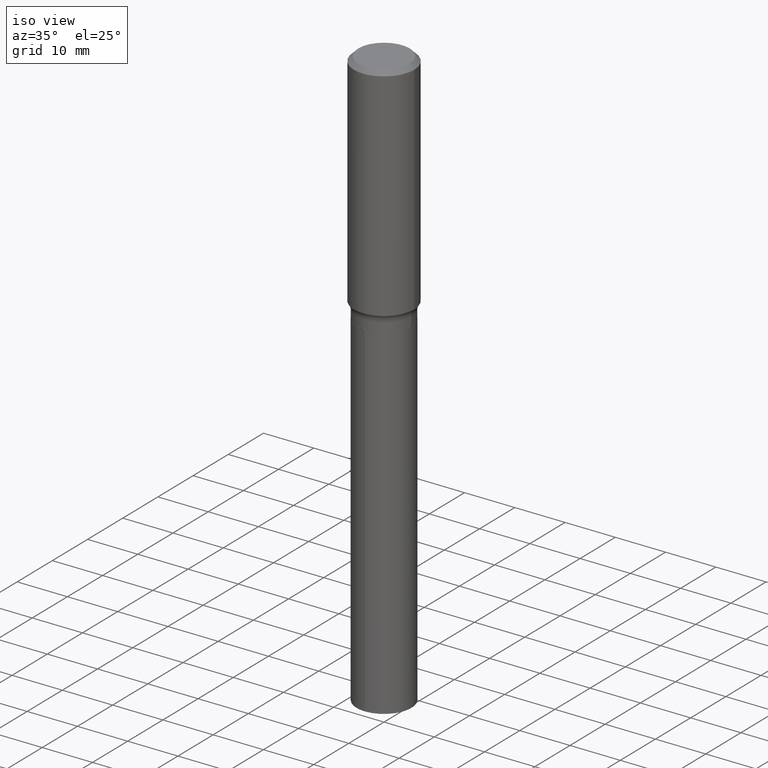
[diagram: clean part render]
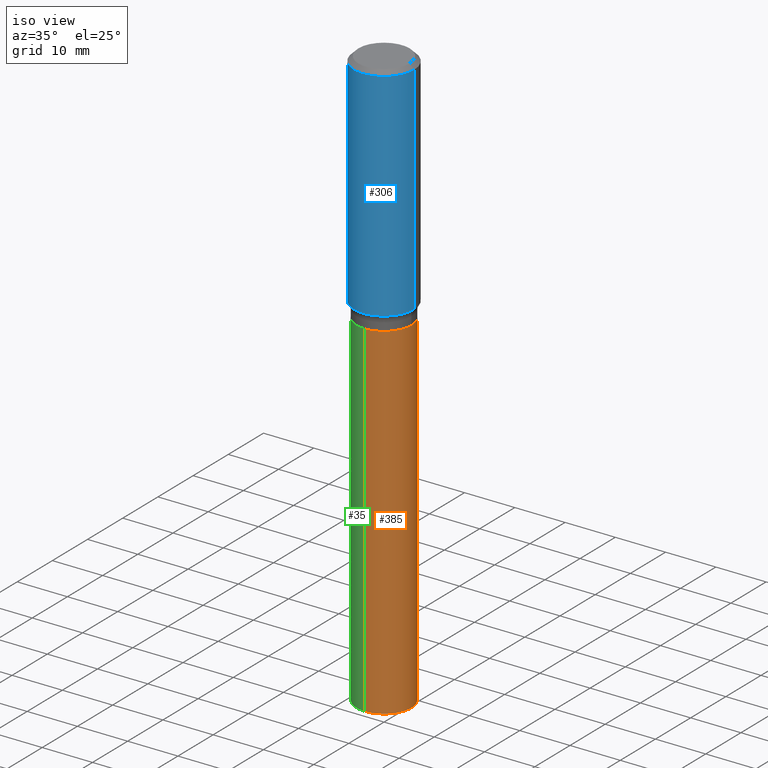
[diagram: same view with three faces highlighted in distinct colors, each labeled with its STEP entity id]
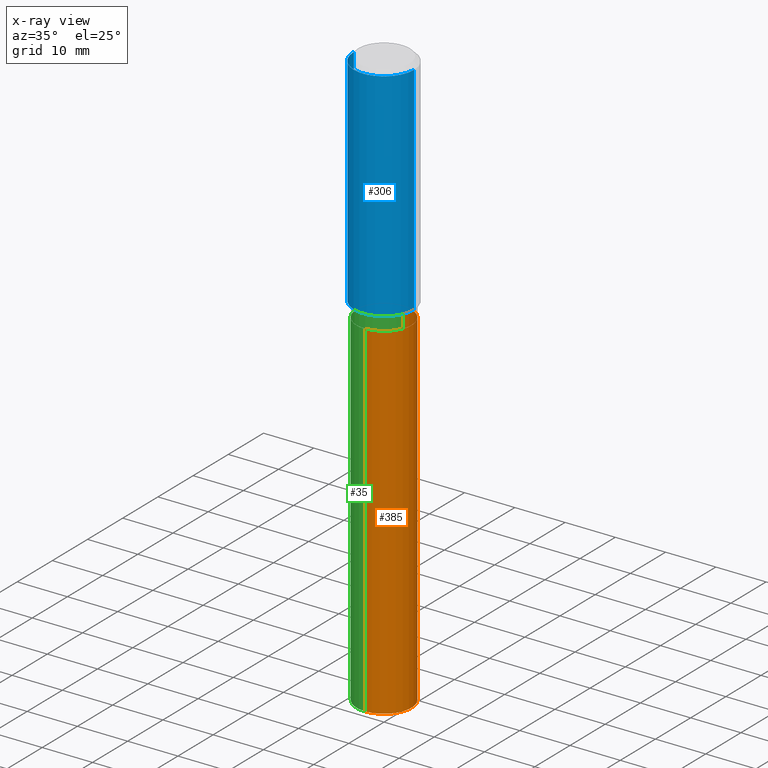
[diagram: x-ray of the same camera — body ghosted, the three highlighted faces saturated]
A machine part, iso view with three faces highlighted in distinct colors.
The next image is the same camera in x-ray (body ghosted, the three faces saturated) — at least one of them is partly hidden behind the body in this view.
Their STEP definitions:

[orange] entity #385 — the highlighted cylindrical surface (edge-blend (fillet) strip) has radius 5.4496 mm, axis along (-0, 0, 1).
#3 = CARTESIAN_POINT ( 'NONE',  ( -1.498194642497543040E-15, -0.2145500000000064578, -1.850699999999999124 ) ) ;
#19 = LINE ( 'NONE', #330, #22 ) ;
#22 = VECTOR ( 'NONE', #141, 39.37007874015748143 ) ;
#41 = VERTEX_POINT ( 'NONE', #237 ) ;
#48 = LINE ( 'NONE', #3, #261 ) ;
#59 = EDGE_CURVE ( 'NONE', #196, #281, #390, .T. ) ;
#68 = DIRECTION ( 'NONE',  ( -2.445463332132347352E-29, 3.491489177998303329E-15, 1.000000000000000000 ) ) ;
#74 = DIRECTION ( 'NONE',  ( -2.445463332132347352E-29, 3.491489177998303329E-15, 1.000000000000000000 ) ) ;
#91 = CARTESIAN_POINT ( 'NONE',  ( 4.525829119606832626E-29, -6.461684513797009689E-15, -1.850700000000000012 ) ) ;
#141 = DIRECTION ( 'NONE',  ( -2.445463332132347072E-29, 3.491489177998303329E-15, 1.000000000000000000 ) ) ;
#147 = DIRECTION ( 'NONE',  ( -6.982962677686266711E-15, -1.000000000000000000, 3.819876010716751118E-15 ) ) ;
#151 = CYLINDRICAL_SURFACE ( 'NONE', #217, 0.2145499999999999907 ) ;
#166 = ORIENTED_EDGE ( 'NONE', *, *, #183, .T. ) ;
#183 = EDGE_CURVE ( 'NONE', #335, #281, #19, .T. ) ;
#196 = VERTEX_POINT ( 'NONE', #248 ) ;
#217 = AXIS2_PLACEMENT_3D ( 'NONE', #373, #68, #147 ) ;
#237 = CARTESIAN_POINT ( 'NONE',  ( -1.498194642497476776E-15, -0.2145500000000159502, -4.559316173247068171 ) ) ;
#239 = DIRECTION ( 'NONE',  ( -2.445463332132347352E-29, 3.491489177998303329E-15, 1.000000000000000000 ) ) ;
#248 = CARTESIAN_POINT ( 'NONE',  ( -1.498194642497543040E-15, -0.2145500000000064578, -1.850699999999999124 ) ) ;
#261 = VECTOR ( 'NONE', #386, 39.37007874015748143 ) ;
#271 = ORIENTED_EDGE ( 'NONE', *, *, #59, .F. ) ;
#281 = VERTEX_POINT ( 'NONE', #479 ) ;
#330 = CARTESIAN_POINT ( 'NONE',  ( 1.524469439573340045E-15, 0.2145499999999935514, -1.850700000000000900 ) ) ;
#335 = VERTEX_POINT ( 'NONE', #445 ) ;
#338 = EDGE_LOOP ( 'NONE', ( #476, #166, #271, #423 ) ) ;
#361 = EDGE_CURVE ( 'NONE', #41, #335, #466, .T. ) ;
#365 = DIRECTION ( 'NONE',  ( -6.982962677686266711E-15, -1.000000000000000000, 3.819876010716751118E-15 ) ) ;
#373 = CARTESIAN_POINT ( 'NONE',  ( 4.525829119606832626E-29, -6.461684513797009689E-15, -1.850700000000000012 ) ) ;
#375 = DIRECTION ( 'NONE',  ( -6.982962677686266711E-15, -1.000000000000000000, 2.546584007144500745E-15 ) ) ;
#381 = AXIS2_PLACEMENT_3D ( 'NONE', #481, #74, #375 ) ;
#385 = ADVANCED_FACE ( 'NONE', ( #478 ), #151, .T. ) ;
#386 = DIRECTION ( 'NONE',  ( -2.445463332132347072E-29, 3.491489177998303329E-15, 1.000000000000000000 ) ) ;
#390 = CIRCLE ( 'NONE', #441, 0.2145499999999999907 ) ;
#423 = ORIENTED_EDGE ( 'NONE', *, *, #428, .F. ) ;
#428 = EDGE_CURVE ( 'NONE', #41, #196, #48, .T. ) ;
#441 = AXIS2_PLACEMENT_3D ( 'NONE', #91, #239, #365 ) ;
#445 = CARTESIAN_POINT ( 'NONE',  ( 1.524469439573406507E-15, 0.2145499999999841145, -4.559316173247069059 ) ) ;
#466 = CIRCLE ( 'NONE', #381, 0.2145499999999999907 ) ;
#476 = ORIENTED_EDGE ( 'NONE', *, *, #361, .T. ) ;
#478 = FACE_OUTER_BOUND ( 'NONE', #338, .T. ) ;
#479 = CARTESIAN_POINT ( 'NONE',  ( 1.524469439573406901E-15, 0.2145499999999935514, -1.850700000000000900 ) ) ;
#481 = CARTESIAN_POINT ( 'NONE',  ( 1.114965065210317674E-28, -1.591878857004032847E-14, -4.559316173247069059 ) ) ;

[blue] entity #306 — the highlighted cylindrical surface (partial cylindrical patch) has radius 5.9995 mm, axis along (-0, 0, 1).
#14 = ORIENTED_EDGE ( 'NONE', *, *, #347, .F. ) ;
#25 = DIRECTION ( 'NONE',  ( 1.000000000000000000, -6.982962677686266711E-15, 0.000000000000000000 ) ) ;
#31 = VECTOR ( 'NONE', #272, 39.37007874015748143 ) ;
#61 = AXIS2_PLACEMENT_3D ( 'NONE', #412, #370, #25 ) ;
#75 = CARTESIAN_POINT ( 'NONE',  ( -0.2361999999999999933, -1.407814648925067803E-15, -0.03543000000000021826 ) ) ;
#104 = DIRECTION ( 'NONE',  ( 1.000000000000000000, -6.982962677686266711E-15, 0.000000000000000000 ) ) ;
#114 = DIRECTION ( 'NONE',  ( 1.000000000000000000, -6.982962677686266711E-15, 4.876176775795935793E-29 ) ) ;
#145 = AXIS2_PLACEMENT_3D ( 'NONE', #331, #299, #114 ) ;
#149 = CARTESIAN_POINT ( 'NONE',  ( -0.2362000000000001043, 1.678301941865357380E-15, -1.161852468318209317E-29 ) ) ;
#152 = CIRCLE ( 'NONE', #61, 0.2361999999999999933 ) ;
#155 = LINE ( 'NONE', #149, #227 ) ;
#169 = VERTEX_POINT ( 'NONE', #289 ) ;
#171 = CARTESIAN_POINT ( 'NONE',  ( -0.2362000000000002153, -4.370228055880279997E-15, -1.732367843543948460 ) ) ;
#189 = CARTESIAN_POINT ( 'NONE',  ( 0.2362000000000002153, -7.697905782215135283E-15, -1.732367843543948460 ) ) ;
#200 = VERTEX_POINT ( 'NONE', #171 ) ;
#227 = VECTOR ( 'NONE', #300, 39.37007874015748143 ) ;
#234 = ORIENTED_EDGE ( 'NONE', *, *, #316, .F. ) ;
#267 = FACE_OUTER_BOUND ( 'NONE', #455, .T. ) ;
#269 = EDGE_CURVE ( 'NONE', #200, #396, #285, .T. ) ;
#272 = DIRECTION ( 'NONE',  ( -2.445468806185136877E-29, 3.491481338843145188E-15, 1.000000000000000000 ) ) ;
#277 = AXIS2_PLACEMENT_3D ( 'NONE', #431, #324, #104 ) ;
#285 = CIRCLE ( 'NONE', #277, 0.2362000000000002153 ) ;
#289 = CARTESIAN_POINT ( 'NONE',  ( 0.2361999999999999933, -1.773078968304709514E-15, -0.03543000000000021826 ) ) ;
#299 = DIRECTION ( 'NONE',  ( -2.445468806185136597E-29, 3.491481338843145583E-15, 1.000000000000000000 ) ) ;
#300 = DIRECTION ( 'NONE',  ( -2.445468806185136877E-29, 3.491481338843145188E-15, 1.000000000000000000 ) ) ;
#306 = ADVANCED_FACE ( 'NONE', ( #267 ), #410, .T. ) ;
#313 = VERTEX_POINT ( 'NONE', #75 ) ;
#316 = EDGE_CURVE ( 'NONE', #200, #313, #155, .T. ) ;
#324 = DIRECTION ( 'NONE',  ( -2.445468806185136597E-29, 3.491481338843145583E-15, 1.000000000000000000 ) ) ;
#331 = CARTESIAN_POINT ( 'NONE',  ( 0.000000000000000000, 0.000000000000000000, 0.000000000000000000 ) ) ;
#347 = EDGE_CURVE ( 'NONE', #313, #169, #152, .T. ) ;
#353 = ORIENTED_EDGE ( 'NONE', *, *, #269, .T. ) ;
#370 = DIRECTION ( 'NONE',  ( -2.445468806185136597E-29, 3.491481338843145583E-15, 1.000000000000000000 ) ) ;
#396 = VERTEX_POINT ( 'NONE', #189 ) ;
#405 = ORIENTED_EDGE ( 'NONE', *, *, #487, .T. ) ;
#410 = CYLINDRICAL_SURFACE ( 'NONE', #145, 0.2362000000000001043 ) ;
#412 = CARTESIAN_POINT ( 'NONE',  ( 8.664295980313993487E-31, -1.237031838352134079E-16, -0.03543000000000021826 ) ) ;
#431 = CARTESIAN_POINT ( 'NONE',  ( 4.236451522224939206E-29, -6.048529997745637969E-15, -1.732367843543948460 ) ) ;
#454 = CARTESIAN_POINT ( 'NONE',  ( 0.2362000000000001043, -1.649375784469496920E-15, 1.151752954443000508E-29 ) ) ;
#455 = EDGE_LOOP ( 'NONE', ( #234, #353, #405, #14 ) ) ;
#486 = LINE ( 'NONE', #454, #31 ) ;
#487 = EDGE_CURVE ( 'NONE', #396, #169, #486, .T. ) ;

[green] entity #35 — the highlighted cylindrical surface (edge-blend (fillet) strip) has radius 5.4496 mm, axis along (-0, 0, 1).
#3 = CARTESIAN_POINT ( 'NONE',  ( -1.498194642497543040E-15, -0.2145500000000064578, -1.850699999999999124 ) ) ;
#19 = LINE ( 'NONE', #330, #22 ) ;
#22 = VECTOR ( 'NONE', #141, 39.37007874015748143 ) ;
#35 = ADVANCED_FACE ( 'NONE', ( #491 ), #160, .T. ) ;
#41 = VERTEX_POINT ( 'NONE', #237 ) ;
#48 = LINE ( 'NONE', #3, #261 ) ;
#89 = CARTESIAN_POINT ( 'NONE',  ( 4.525829119606832626E-29, -6.461684513797009689E-15, -1.850700000000000012 ) ) ;
#103 = CIRCLE ( 'NONE', #482, 0.2145499999999999907 ) ;
#116 = DIRECTION ( 'NONE',  ( -6.982962677686266711E-15, -1.000000000000000000, 3.819876010716751118E-15 ) ) ;
#141 = DIRECTION ( 'NONE',  ( -2.445463332132347072E-29, 3.491489177998303329E-15, 1.000000000000000000 ) ) ;
#154 = CARTESIAN_POINT ( 'NONE',  ( 1.114965065210317674E-28, -1.591878857004032847E-14, -4.559316173247069059 ) ) ;
#160 = CYLINDRICAL_SURFACE ( 'NONE', #266, 0.2145499999999999907 ) ;
#162 = DIRECTION ( 'NONE',  ( -2.445463332132347352E-29, 3.491489177998303329E-15, 1.000000000000000000 ) ) ;
#183 = EDGE_CURVE ( 'NONE', #335, #281, #19, .T. ) ;
#192 = ORIENTED_EDGE ( 'NONE', *, *, #428, .T. ) ;
#195 = DIRECTION ( 'NONE',  ( -6.982962677686266711E-15, -1.000000000000000000, 2.546584007144500745E-15 ) ) ;
#196 = VERTEX_POINT ( 'NONE', #248 ) ;
#218 = CARTESIAN_POINT ( 'NONE',  ( 4.525829119606832626E-29, -6.461684513797009689E-15, -1.850700000000000012 ) ) ;
#237 = CARTESIAN_POINT ( 'NONE',  ( -1.498194642497476776E-15, -0.2145500000000159502, -4.559316173247068171 ) ) ;
#248 = CARTESIAN_POINT ( 'NONE',  ( -1.498194642497543040E-15, -0.2145500000000064578, -1.850699999999999124 ) ) ;
#261 = VECTOR ( 'NONE', #386, 39.37007874015748143 ) ;
#266 = AXIS2_PLACEMENT_3D ( 'NONE', #89, #162, #310 ) ;
#281 = VERTEX_POINT ( 'NONE', #479 ) ;
#310 = DIRECTION ( 'NONE',  ( -6.982962677686266711E-15, -1.000000000000000000, 3.819876010716751118E-15 ) ) ;
#330 = CARTESIAN_POINT ( 'NONE',  ( 1.524469439573340045E-15, 0.2145499999999935514, -1.850700000000000900 ) ) ;
#335 = VERTEX_POINT ( 'NONE', #445 ) ;
#342 = DIRECTION ( 'NONE',  ( -2.445463332132347352E-29, 3.491489177998303329E-15, 1.000000000000000000 ) ) ;
#348 = ORIENTED_EDGE ( 'NONE', *, *, #398, .F. ) ;
#349 = DIRECTION ( 'NONE',  ( -2.445463332132347352E-29, 3.491489177998303329E-15, 1.000000000000000000 ) ) ;
#382 = EDGE_LOOP ( 'NONE', ( #468, #464, #192, #348 ) ) ;
#386 = DIRECTION ( 'NONE',  ( -2.445463332132347072E-29, 3.491489177998303329E-15, 1.000000000000000000 ) ) ;
#398 = EDGE_CURVE ( 'NONE', #281, #196, #103, .T. ) ;
#421 = EDGE_CURVE ( 'NONE', #335, #41, #427, .T. ) ;
#427 = CIRCLE ( 'NONE', #443, 0.2145499999999999907 ) ;
#428 = EDGE_CURVE ( 'NONE', #41, #196, #48, .T. ) ;
#443 = AXIS2_PLACEMENT_3D ( 'NONE', #154, #349, #195 ) ;
#445 = CARTESIAN_POINT ( 'NONE',  ( 1.524469439573406507E-15, 0.2145499999999841145, -4.559316173247069059 ) ) ;
#464 = ORIENTED_EDGE ( 'NONE', *, *, #421, .T. ) ;
#468 = ORIENTED_EDGE ( 'NONE', *, *, #183, .F. ) ;
#479 = CARTESIAN_POINT ( 'NONE',  ( 1.524469439573406901E-15, 0.2145499999999935514, -1.850700000000000900 ) ) ;
#482 = AXIS2_PLACEMENT_3D ( 'NONE', #218, #342, #116 ) ;
#491 = FACE_OUTER_BOUND ( 'NONE', #382, .T. ) ;